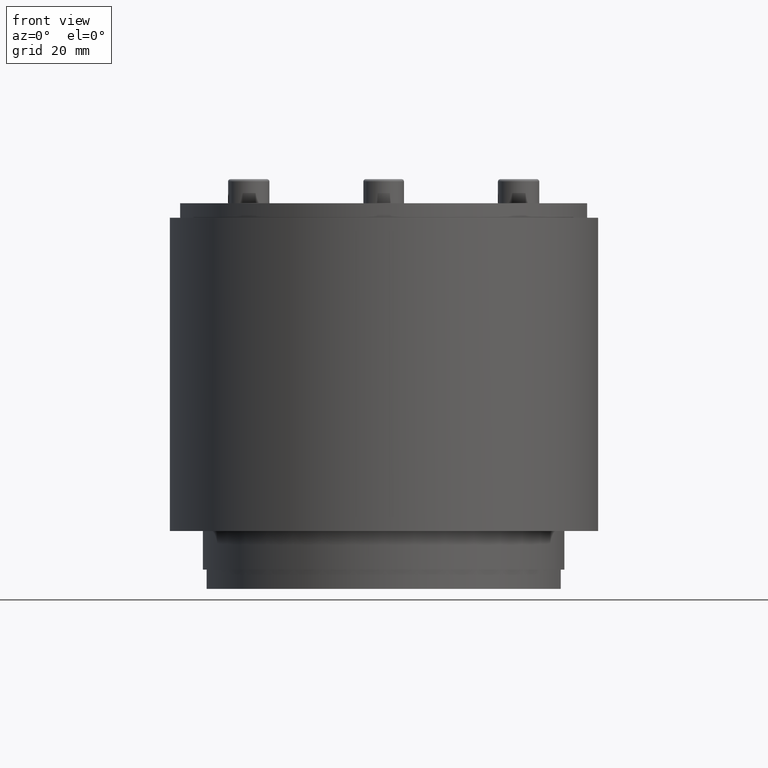
[diagram: clean part render]
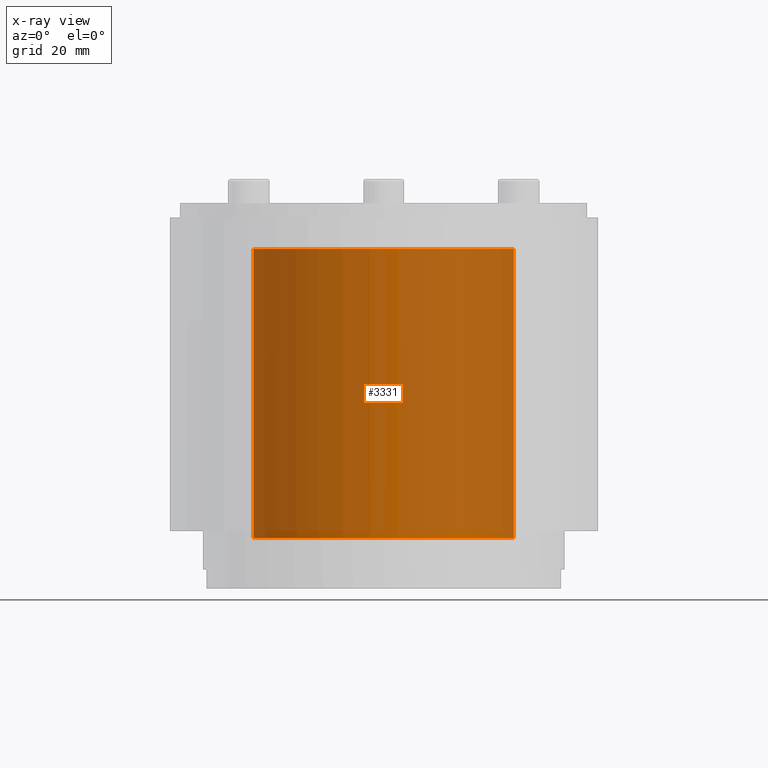
[diagram: x-ray — body ghosted, one internal face saturated and labeled with its STEP entity id]
A machine part, front view, then the same camera in x-ray: the body is ghosted and one INTERNAL B-rep face — a face not visible from any outside direction — is saturated and labeled: STEP entity #3331.
In plain terms, the highlighted cylindrical surface (partial cylindrical patch) has radius 27 mm, axis along (0, 0, -1).
Its self-contained STEP definition (entity closure, byte-faithful):
#3265=CARTESIAN_POINT('',(-30.000000000000004,-2.688658E-015,27.0));
#3266=VERTEX_POINT('',#3265);
#3273=CARTESIAN_POINT('',(-30.0,5.995204E-015,-27.0));
#3274=VERTEX_POINT('',#3273);
#3275=CARTESIAN_POINT('',(-30.000000000000004,0.0,0.0));
#3276=DIRECTION('',(1.0,0.0,0.0));
#3277=DIRECTION('',(0.0,0.0,-1.0));
#3278=AXIS2_PLACEMENT_3D('',#3275,#3276,#3277);
#3279=CIRCLE('',#3278,27.0);
#3280=EDGE_CURVE('',#3274,#3266,#3279,.T.);
#3300=CARTESIAN_POINT('',(0.0,0.0,0.0));
#3301=DIRECTION('',(1.0,0.0,0.0));
#3302=DIRECTION('',(0.0,0.0,-1.0));
#3303=AXIS2_PLACEMENT_3D('',#3300,#3301,#3302);
#3304=CYLINDRICAL_SURFACE('',#3303,27.0);
#3305=CARTESIAN_POINT('',(30.0,-2.688658E-015,27.0));
#3306=VERTEX_POINT('',#3305);
#3307=CARTESIAN_POINT('',(-30.0,-2.688658E-015,27.0));
#3308=DIRECTION('',(1.0,0.0,0.0));
#3309=VECTOR('',#3308,60.0);
#3310=LINE('',#3307,#3309);
#3311=EDGE_CURVE('',#3266,#3306,#3310,.T.);
#3312=ORIENTED_EDGE('',*,*,#3311,.T.);
#3313=CARTESIAN_POINT('',(30.0,5.995204E-015,-27.0));
#3314=VERTEX_POINT('',#3313);
#3315=CARTESIAN_POINT('',(30.0,0.0,0.0));
#3316=DIRECTION('',(1.0,0.0,0.0));
#3317=DIRECTION('',(0.0,0.0,-1.0));
#3318=AXIS2_PLACEMENT_3D('',#3315,#3316,#3317);
#3319=CIRCLE('',#3318,27.0);
#3320=EDGE_CURVE('',#3314,#3306,#3319,.T.);
#3321=ORIENTED_EDGE('',*,*,#3320,.F.);
#3322=CARTESIAN_POINT('',(-30.0,5.995204E-015,-27.0));
#3323=DIRECTION('',(1.0,0.0,0.0));
#3324=VECTOR('',#3323,60.0);
#3325=LINE('',#3322,#3324);
#3326=EDGE_CURVE('',#3274,#3314,#3325,.T.);
#3327=ORIENTED_EDGE('',*,*,#3326,.F.);
#3328=ORIENTED_EDGE('',*,*,#3280,.T.);
#3329=EDGE_LOOP('',(#3312,#3321,#3327,#3328));
#3330=FACE_OUTER_BOUND('',#3329,.T.);
#3331=ADVANCED_FACE('',(#3330),#3304,.T.);